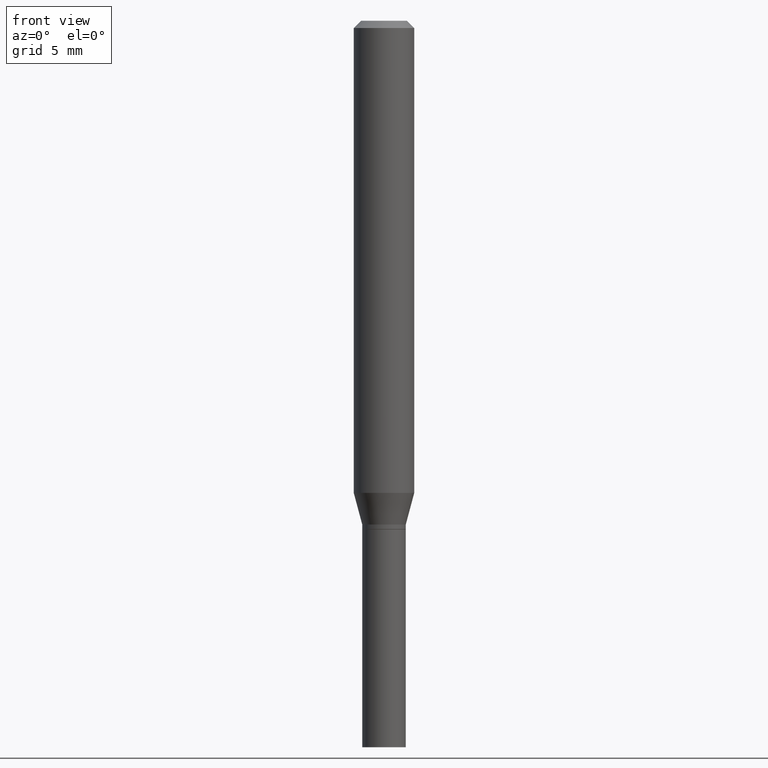
[diagram: clean part render]
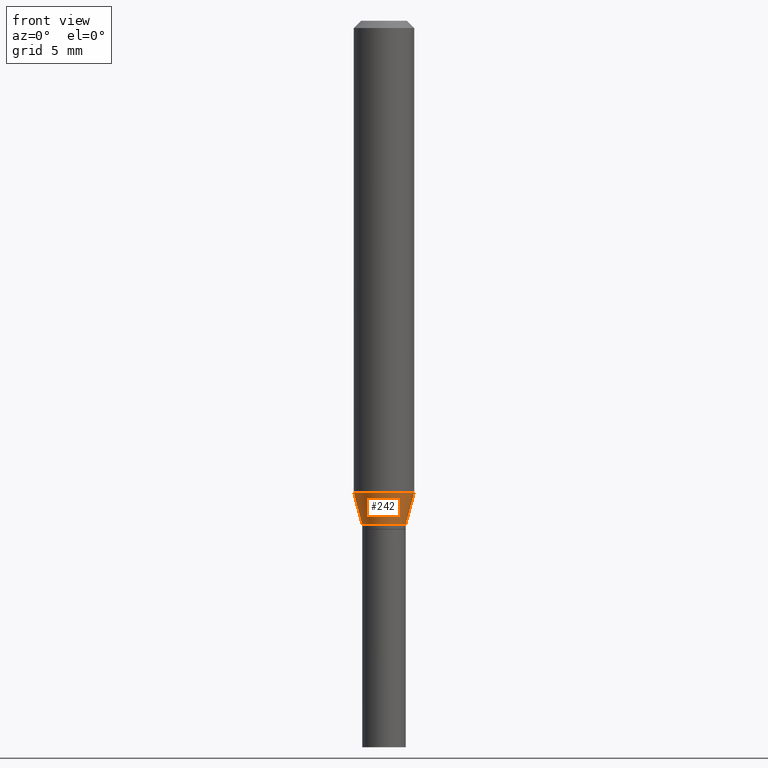
[diagram: same view with one face highlighted and labeled with its STEP entity id]
A machine part, front view. The second image highlights one B-rep face of the part: STEP entity #242.
In plain terms, the highlighted conical surface has half-angle 15 deg.
Its self-contained STEP definition (entity closure, byte-faithful):
#5 = CARTESIAN_POINT ( 'NONE',  ( 2.383571816354907179E-29, -3.403108841767650728E-15, -0.9746891108675448390 ) ) ;
#6 = DIRECTION ( 'NONE',  ( 1.000000000000000000, -6.982962677686270655E-15, 0.000000000000000000 ) ) ;
#9 = AXIS2_PLACEMENT_3D ( 'NONE', #284, #416, #24 ) ;
#16 = VERTEX_POINT ( 'NONE', #142 ) ;
#18 = VECTOR ( 'NONE', #87, 39.37007874015748143 ) ;
#20 = CARTESIAN_POINT ( 'NONE',  ( 0.06250000000000000000, -3.839544009123042397E-15, -0.9746891108675448390 ) ) ;
#24 = DIRECTION ( 'NONE',  ( 1.000000000000000000, -6.982962677686272233E-15, 0.000000000000000000 ) ) ;
#25 = EDGE_CURVE ( 'NONE', #192, #235, #255, .T. ) ;
#43 = DIRECTION ( 'NONE',  ( -2.445468806185136597E-29, 3.491481338843145583E-15, 1.000000000000000000 ) ) ;
#48 = CARTESIAN_POINT ( 'NONE',  ( 0.04500000000000004691, -3.945373912892754260E-15, -1.040000000000000036 ) ) ;
#53 = ORIENTED_EDGE ( 'NONE', *, *, #432, .T. ) ;
#72 = VERTEX_POINT ( 'NONE', #20 ) ;
#75 = CARTESIAN_POINT ( 'NONE',  ( 2.543287558432542218E-29, -3.631140592396871785E-15, -1.040000000000000036 ) ) ;
#79 = ORIENTED_EDGE ( 'NONE', *, *, #406, .F. ) ;
#87 = DIRECTION ( 'NONE',  ( 0.2588190451025205174, 1.565188264969628476E-15, 0.9659258262890684232 ) ) ;
#142 = CARTESIAN_POINT ( 'NONE',  ( -0.06250000000000000000, -2.959019631917587717E-15, -0.9746891108675448390 ) ) ;
#149 = DIRECTION ( 'NONE',  ( -2.445468806185136597E-29, 3.491481338843145583E-15, 1.000000000000000000 ) ) ;
#151 = CARTESIAN_POINT ( 'NONE',  ( -0.04500000000000004691, -3.311396361304826023E-15, -1.040000000000000036 ) ) ;
#162 = ORIENTED_EDGE ( 'NONE', *, *, #292, .F. ) ;
#177 = FACE_OUTER_BOUND ( 'NONE', #281, .T. ) ;
#179 = AXIS2_PLACEMENT_3D ( 'NONE', #75, #149, #319 ) ;
#183 = LINE ( 'NONE', #151, #347 ) ;
#192 = VERTEX_POINT ( 'NONE', #359 ) ;
#235 = VERTEX_POINT ( 'NONE', #324 ) ;
#237 = CIRCLE ( 'NONE', #320, 0.06250000000000000000 ) ;
#242 = ADVANCED_FACE ( 'NONE', ( #177 ), #462, .T. ) ;
#255 = CIRCLE ( 'NONE', #9, 0.04500000000000004691 ) ;
#281 = EDGE_LOOP ( 'NONE', ( #162, #403, #53, #79 ) ) ;
#284 = CARTESIAN_POINT ( 'NONE',  ( 2.543287558432542218E-29, -3.631140592396871785E-15, -1.040000000000000036 ) ) ;
#292 = EDGE_CURVE ( 'NONE', #192, #16, #183, .T. ) ;
#319 = DIRECTION ( 'NONE',  ( 1.000000000000000000, -6.982962677686272233E-15, 0.000000000000000000 ) ) ;
#320 = AXIS2_PLACEMENT_3D ( 'NONE', #5, #43, #6 ) ;
#324 = CARTESIAN_POINT ( 'NONE',  ( 0.04500000000000004691, -3.945373912892754260E-15, -1.040000000000000036 ) ) ;
#339 = DIRECTION ( 'NONE',  ( -0.2588190451025205174, 5.211531920934544731E-15, 0.9659258262890684232 ) ) ;
#347 = VECTOR ( 'NONE', #339, 39.37007874015748143 ) ;
#359 = CARTESIAN_POINT ( 'NONE',  ( -0.04500000000000004691, -3.135207996611206870E-15, -1.040000000000000036 ) ) ;
#403 = ORIENTED_EDGE ( 'NONE', *, *, #25, .T. ) ;
#406 = EDGE_CURVE ( 'NONE', #16, #72, #237, .T. ) ;
#410 = LINE ( 'NONE', #48, #18 ) ;
#416 = DIRECTION ( 'NONE',  ( -2.445468806185136597E-29, 3.491481338843145583E-15, 1.000000000000000000 ) ) ;
#432 = EDGE_CURVE ( 'NONE', #235, #72, #410, .T. ) ;
#462 = CONICAL_SURFACE ( 'NONE', #179, 0.04500000000000004691, 0.2617993877991491858 ) ;